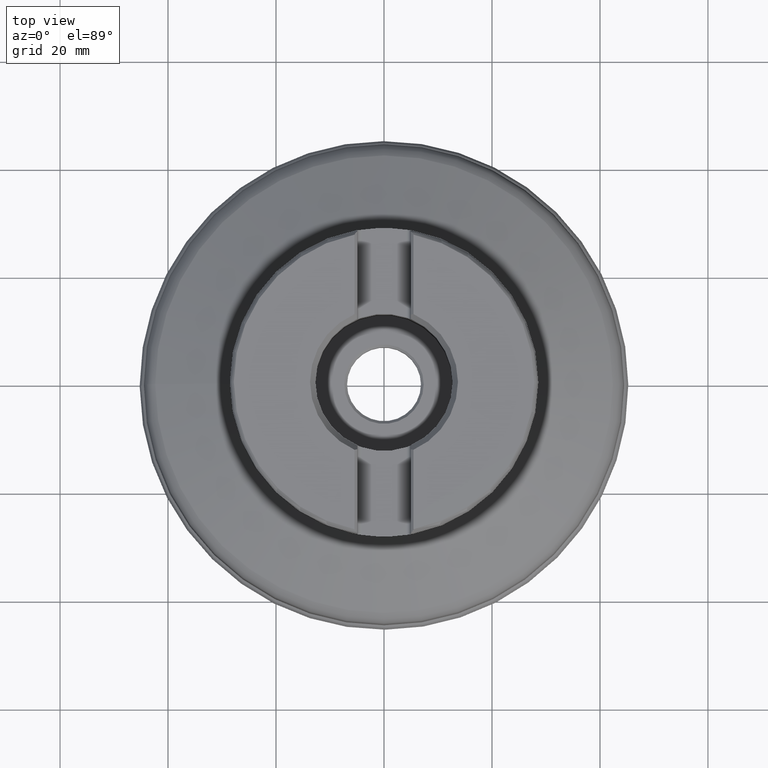
[diagram: clean part render]
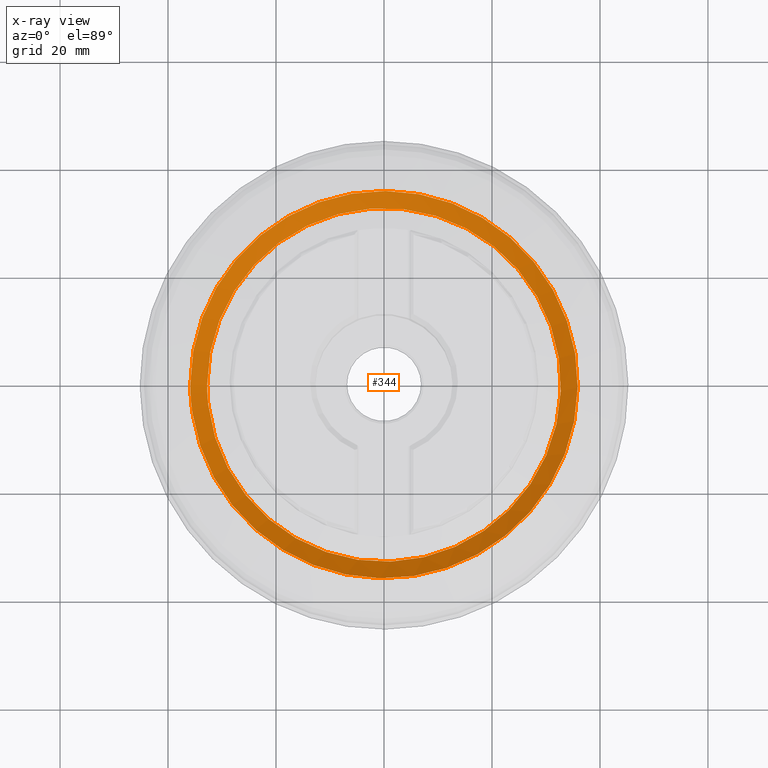
[diagram: x-ray — body ghosted, one internal face saturated and labeled with its STEP entity id]
A machine part, top view, then the same camera in x-ray: the body is ghosted and one INTERNAL B-rep face — a face not visible from any outside direction — is saturated and labeled: STEP entity #344.
In plain terms, the highlighted face is a SurfaceOfRevolution surface.
Its self-contained STEP definition (entity closure, byte-faithful):
#128=SURFACE_OF_REVOLUTION('',#243,#149);
#149=AXIS1_PLACEMENT('',#2181,#1452);
#243=LINE('',#2180,#279);
#279=VECTOR('',#1451,4.41942801874022);
#344=ADVANCED_FACE('',(#447,#448),#128,.F.);
#447=FACE_BOUND('',#561,.T.);
#448=FACE_BOUND('',#562,.T.);
#561=EDGE_LOOP('',(#773));
#562=EDGE_LOOP('',(#774));
#773=ORIENTED_EDGE('',*,*,#969,.T.);
#774=ORIENTED_EDGE('',*,*,#970,.F.);
#863=VERTEX_POINT('',#2175);
#864=VERTEX_POINT('',#2179);
#969=EDGE_CURVE('',#863,#863,#1027,.T.);
#970=EDGE_CURVE('',#864,#864,#1028,.T.);
#1027=CIRCLE('',#1184,32.7534758314729);
#1028=CIRCLE('',#1185,35.8755230329472);
#1184=AXIS2_PLACEMENT_3D('',#2174,#1445,#1446);
#1185=AXIS2_PLACEMENT_3D('',#2178,#1449,#1450);
#1445=DIRECTION('',(0.,0.,-1.));
#1446=DIRECTION('',(-1.,0.,0.));
#1449=DIRECTION('',(0.,0.,-1.));
#1450=DIRECTION('',(-1.,0.,0.));
#1451=DIRECTION('',(-0.232948690087212,0.707695388614316,-0.667009853540924));
#1452=DIRECTION('',(0.,0.,-1.));
#2174=CARTESIAN_POINT('',(0.,0.,11.7044980559707));
#2175=CARTESIAN_POINT('',(-32.7534758314729,0.,11.7044980559707));
#2178=CARTESIAN_POINT('',(0.,0.,14.6523000914852));
#2179=CARTESIAN_POINT('',(-35.8755230329472,0.,14.6523000914852));
#2180=CARTESIAN_POINT('',(0.342797755924038,-35.873885245204,14.6523000914852));
#2181=CARTESIAN_POINT('',(0.,0.,0.));